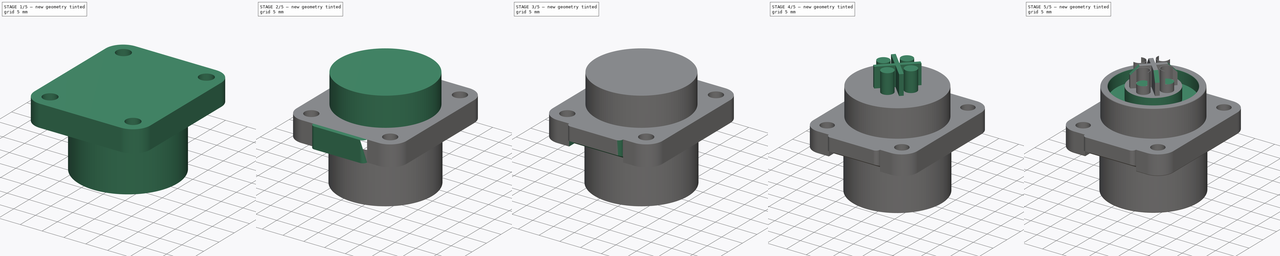
[diagram: build sequence overview — one tinted view per stage of 5, left to right]
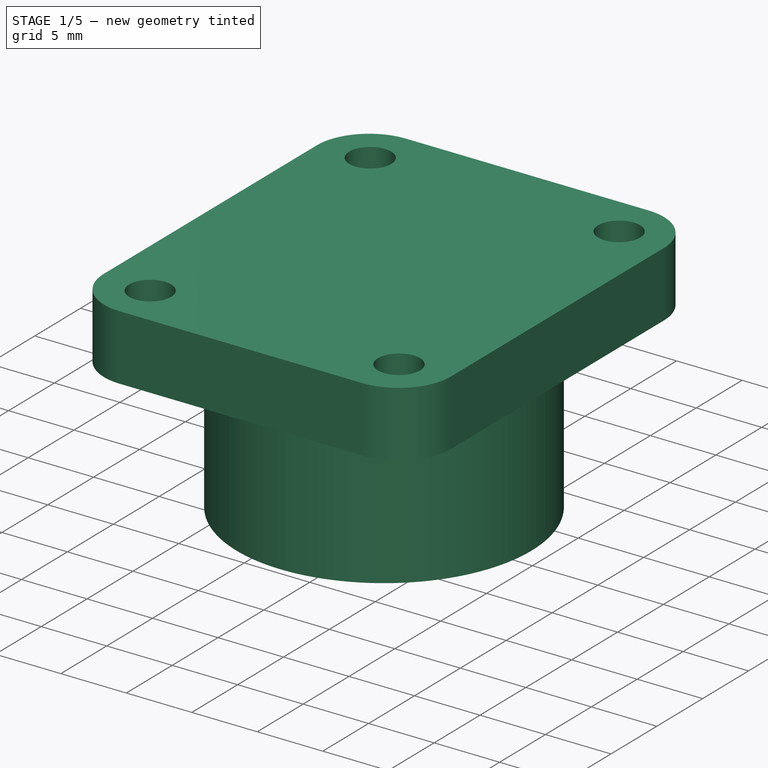
[diagram: stage 1 of 5 — iso view after this stage's code; geometry added in this stage tinted green]
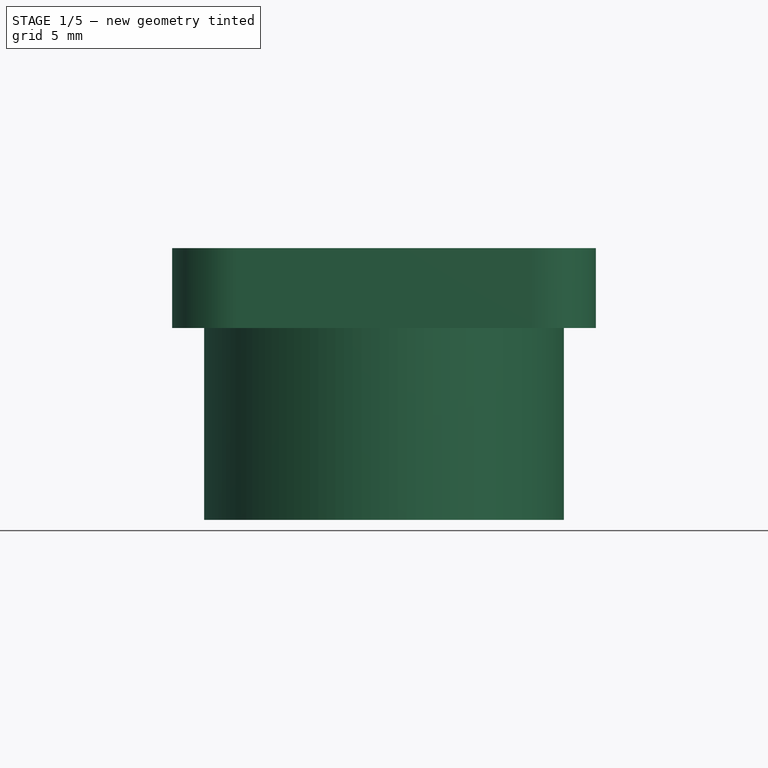
[diagram: stage 1 of 5 — front view after this stage's code; geometry added in this stage tinted green]
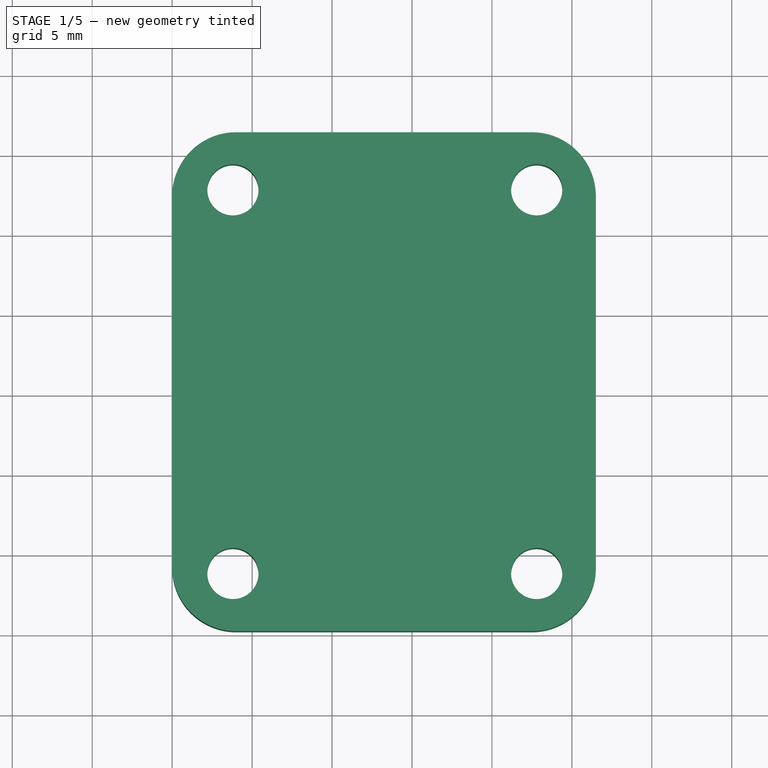
[diagram: stage 1 of 5 — top view after this stage's code; geometry added in this stage tinted green]
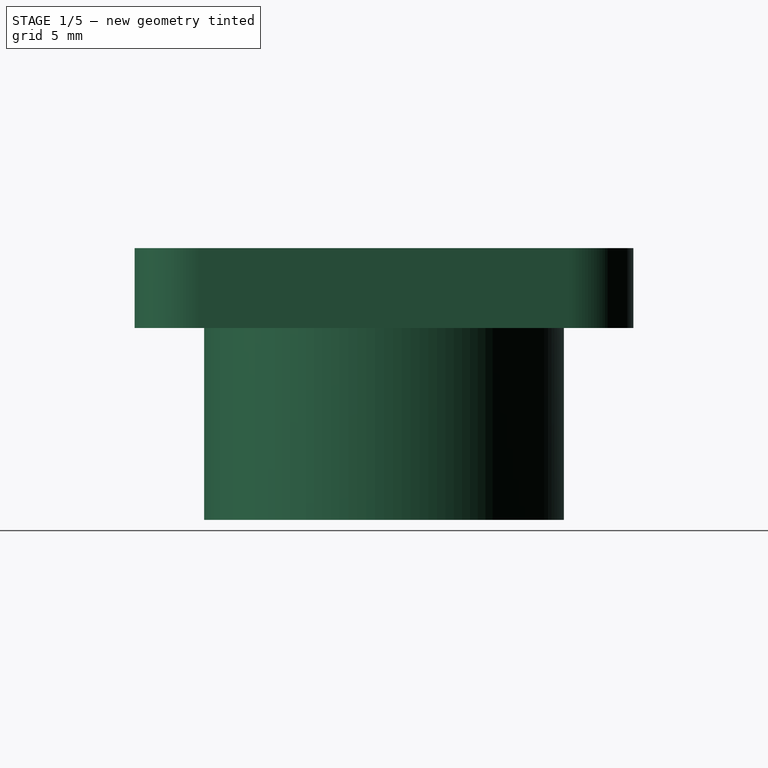
[diagram: stage 1 of 5 — right view after this stage's code; geometry added in this stage tinted green]
FCSTD DOCUMENT  (FreeCAD 0.18R4 (GitTag))
Label: PowerConnector
License: All rights reserved
LicenseURL: http://en.wikipedia.org/wiki/All_rights_reserved
objects: Sketcher::SketchObject×12, PartDesign::Pocket×7, PartDesign::Pad×5, PartDesign::Chamfer×4, PartDesign::Fillet×2, PartDesign::Body×1
note: 43 computed .brp shape members not serialized (recipe doc carries the construction recipe); baked Part::Feature solids carry a one-line shape summary decoded from their .brp

FEATURE [Sketcher::SketchObject] Sketch
  MapMode = 5
  Support = -> [XY_Plane]
  sketch-geometry (4):
    g0: LineSegment StartX=0 StartY=0 StartZ=0 EndX=26.5 EndY=0 EndZ=0
    g1: LineSegment StartX=26.5 StartY=0 StartZ=0 EndX=26.5 EndY=31.2 EndZ=0
    g2: LineSegment StartX=26.5 StartY=31.2 StartZ=0 EndX=0 EndY=31.2 EndZ=0
    g3: LineSegment StartX=0 StartY=31.2 StartZ=0 EndX=0 EndY=0 EndZ=0
  constraints (11):
    c: Coincident(g0,g1)
    c: Coincident(g1,g2)
    c: Coincident(g2,g3)
    c: Coincident(g3,g0)
    c: Horizontal(g0)
    c: Horizontal(g2)
    c: Vertical(g1)
    c: Vertical(g3)
    c: Coincident(g0,g-1)
    c: Distance(g2) = 26.5
    c: Distance(g3) = 31.2
FEATURE [PartDesign::Pad] Pad
  Length = 5
  Length2 = 100
  Profile = -> Sketch
  Type = 0
FEATURE [Sketcher::SketchObject] Sketch001
  MapMode = 5
  Placement = pos=(0,0,5) rot=(0,0,1;0rad)
  Support = -> [Pad]
  sketch-geometry (4):
    g0: Circle CenterX=3.8 CenterY=27.6 CenterZ=0 NormalX=0 NormalY=0 NormalZ=1 AngleXU=0 Radius=1.6
    g1: Circle CenterX=22.8 CenterY=27.6 CenterZ=0 NormalX=0 NormalY=0 NormalZ=1 AngleXU=0 Radius=1.6
    g2: Circle CenterX=22.8 CenterY=3.6 CenterZ=0 NormalX=0 NormalY=0 NormalZ=1 AngleXU=0 Radius=1.6
    g3: Circle CenterX=3.8 CenterY=3.6 CenterZ=0 NormalX=0 NormalY=0 NormalZ=1 AngleXU=0 Radius=1.6
  constraints (12):
    c: Diameter(g1) = 3.2
    c: Diameter(g2) = 3.2
    c: Diameter(g3) = 3.2
    c: Diameter(g0) = 3.2
    c: Distance(g0,g1) = 19
    c: Distance(g3,g2) = 19
    c: Distance(g3,g0) = 24
    c: Distance(g2,g1) = 24
    c: Distance(g0,g-2) = 3.8
    c: Distance(g3,g-2) = 3.8
    c: Distance(g3,g-1) = 3.6
    c: Distance(g2,g-1) = 3.6
FEATURE [PartDesign::Pocket] Pocket
  BaseFeature = -> Pad
  Length = 5
  Length2 = 100
  Profile = -> Sketch001
  Type = 0
FEATURE [PartDesign::Fillet] Fillet
  Base = -> Pocket [Edge8,Edge2,Edge5,Edge1]
  BaseFeature = -> Pocket
  Radius = 4
FEATURE [Sketcher::SketchObject] Sketch002
  MapMode = 5
  Placement = pos=(0,0,0) rot=(1,0,0;3.14159rad)
  Support = -> [Fillet]
  sketch-geometry (1):
    g0: Circle CenterX=13.25 CenterY=-15.6 CenterZ=0 NormalX=0 NormalY=0 NormalZ=1 AngleXU=0 Radius=11.25
  constraints (3):
    c: Distance(g0,g-1) = 15.6
    c: Distance(g0,g-2) = 13.25
    c: Diameter(g0) = 22.5
FEATURE [PartDesign::Pad] Pad001
  BaseFeature = -> Fillet
  Length = 12
  Length2 = 100
  Profile = -> Sketch002
  Type = 0
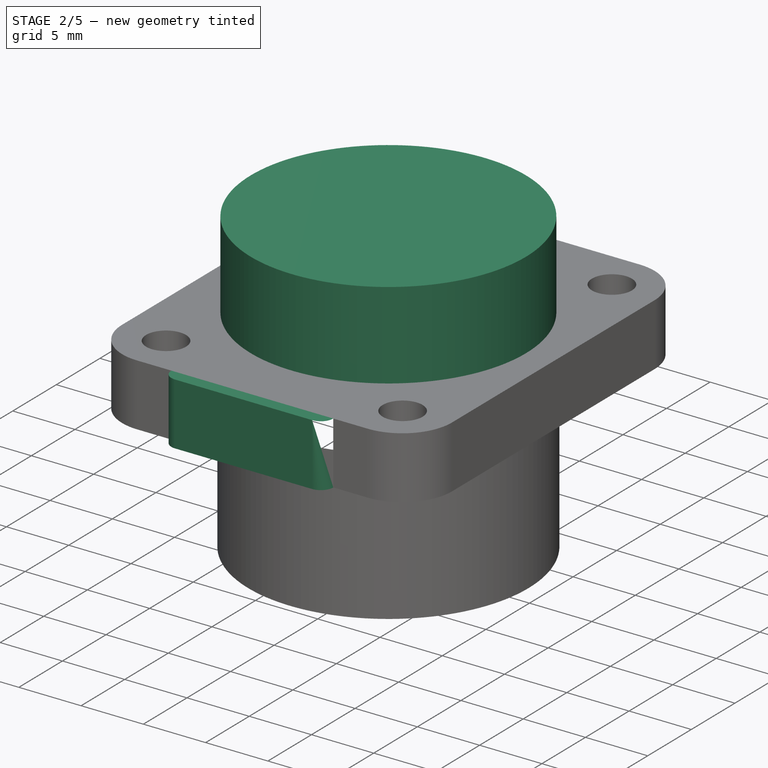
[diagram: stage 2 of 5 — iso view after this stage's code; geometry added in this stage tinted green]
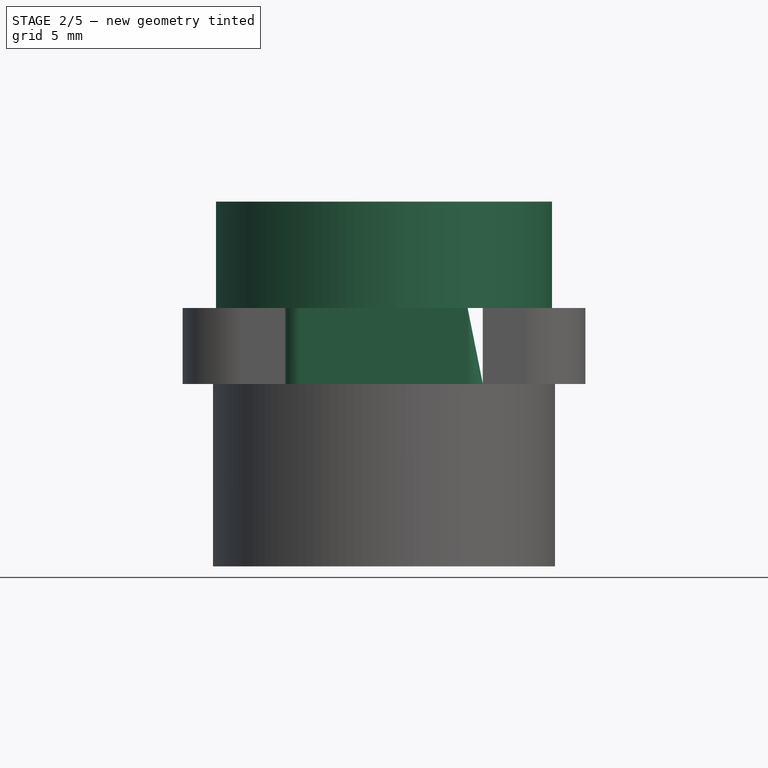
[diagram: stage 2 of 5 — front view after this stage's code; geometry added in this stage tinted green]
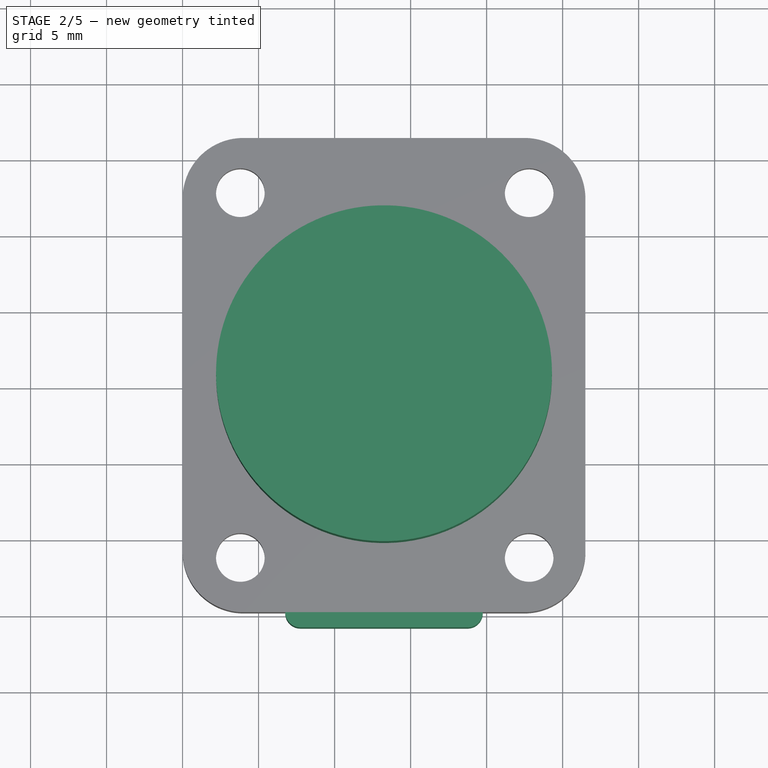
[diagram: stage 2 of 5 — top view after this stage's code; geometry added in this stage tinted green]
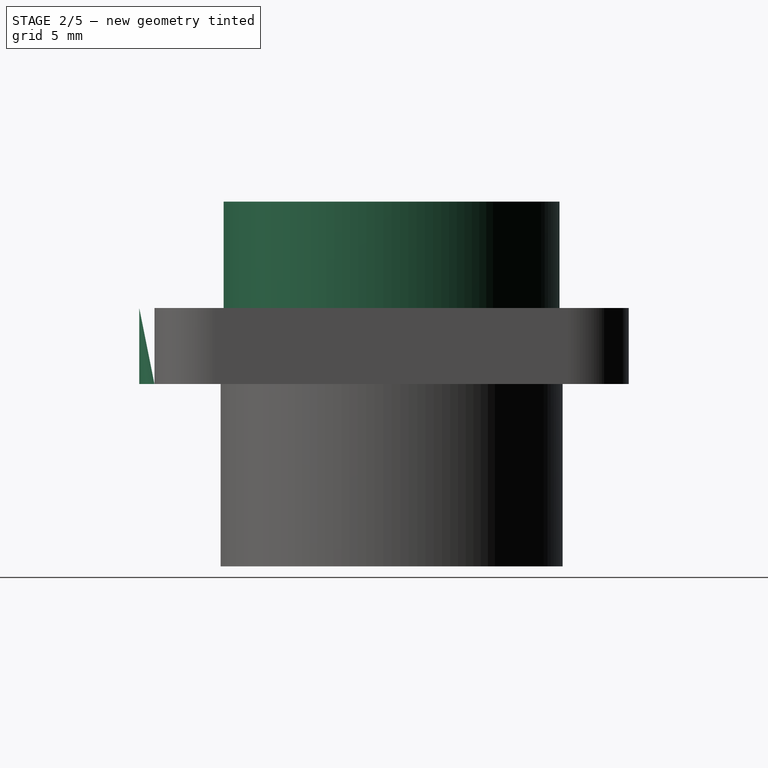
[diagram: stage 2 of 5 — right view after this stage's code; geometry added in this stage tinted green]
FEATURE [Sketcher::SketchObject] Sketch003
  MapMode = 5
  Placement = pos=(0,0,5) rot=(0,0,1;0rad)
  Support = -> [Pad001]
  sketch-geometry (1):
    g0: Circle CenterX=13.25 CenterY=15.6 CenterZ=0 NormalX=0 NormalY=0 NormalZ=1 AngleXU=0 Radius=11.05
  constraints (3):
    c: Distance(g0,g-1) = 15.6
    c: Distance(g0,g-2) = 13.25
    c: Diameter(g0) = 22.1
FEATURE [PartDesign::Pad] Pad002
  BaseFeature = -> Pad001
  Length = 7
  Length2 = 100
  Profile = -> Sketch003
  Type = 0
FEATURE [PartDesign::Chamfer] Chamfer
  Base = -> Pad002 [Edge14,Edge12,Edge16,Edge15]
  BaseFeature = -> Pad002
  Size = 1
FEATURE [Sketcher::SketchObject] Sketch004
  MapMode = 5
  Placement = pos=(0,0,0) rot=(1,0,0;3.14159rad)
  Support = -> [Chamfer]
  sketch-geometry (4):
    g0: ArcOfCircle CenterX=7.75 CenterY=1.7e-15 CenterZ=0 NormalX=0 NormalY=0 NormalZ=1 AngleXU=0 Radius=1 StartAngle=1.5708 EndAngle=4.71239
    g1: ArcOfCircle CenterX=18.75 CenterY=0 CenterZ=0 NormalX=0 NormalY=0 NormalZ=1 AngleXU=0 Radius=1 StartAngle=4.71239 EndAngle=7.85398
    g2: LineSegment StartX=7.75 StartY=-1 StartZ=0 EndX=18.75 EndY=-1 EndZ=0
    g3: LineSegment StartX=7.75 StartY=1 StartZ=0 EndX=18.75 EndY=1 EndZ=0
  constraints (10):
    c: Tangent(g0,g3) = 1.5708
    c: Tangent(g0,g2) = -1.5708
    c: Tangent(g2,g1) = -1.5708
    c: Tangent(g3,g1) = 1.5708
    c: Horizontal(g2)
    c: Equal(g0,g1)
    c: Distance(g3) = 11
    c: Distance(g1,g1) = 1
    c: Distance(g0,g-1) = 1
    c: Distance(g0,g-2) = 7.75
FEATURE [PartDesign::Pad] Pad003
  BaseFeature = -> Chamfer
  Length = 5
  Length2 = 100
  Profile = -> Sketch004
  Reversed = true
  Type = 0
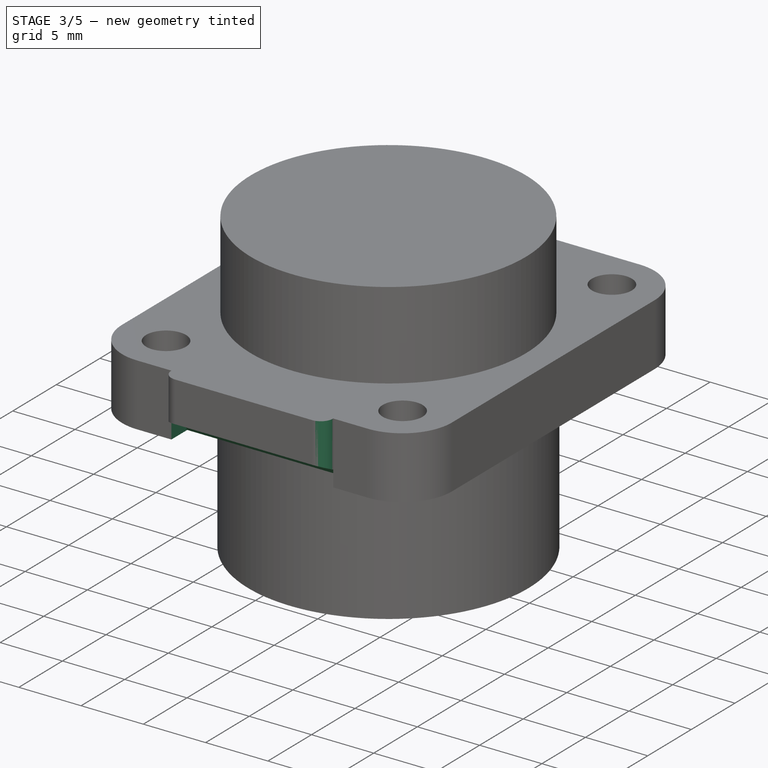
[diagram: stage 3 of 5 — iso view after this stage's code; geometry added in this stage tinted green]
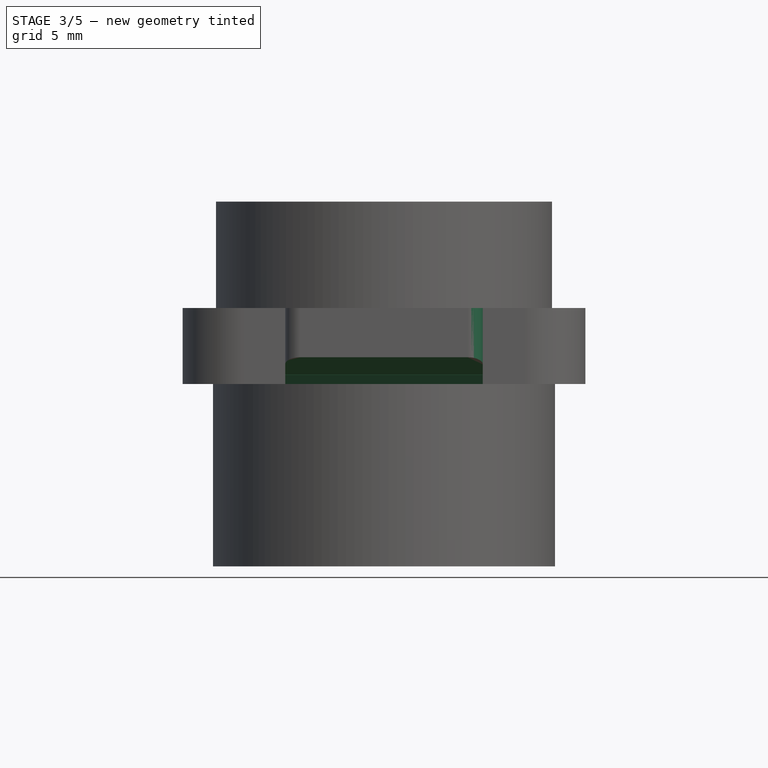
[diagram: stage 3 of 5 — front view after this stage's code; geometry added in this stage tinted green]
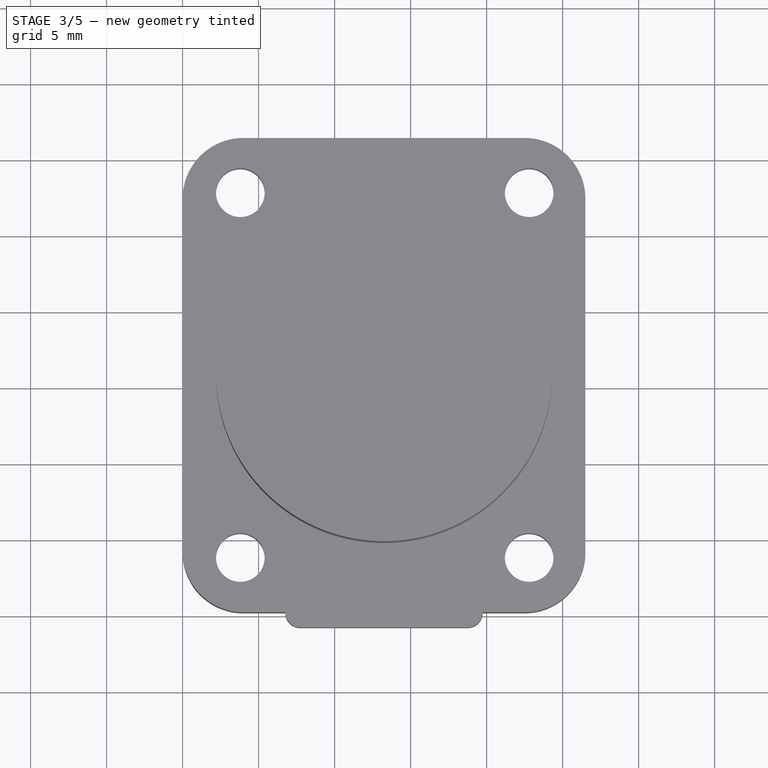
[diagram: stage 3 of 5 — top view after this stage's code; geometry added in this stage tinted green]
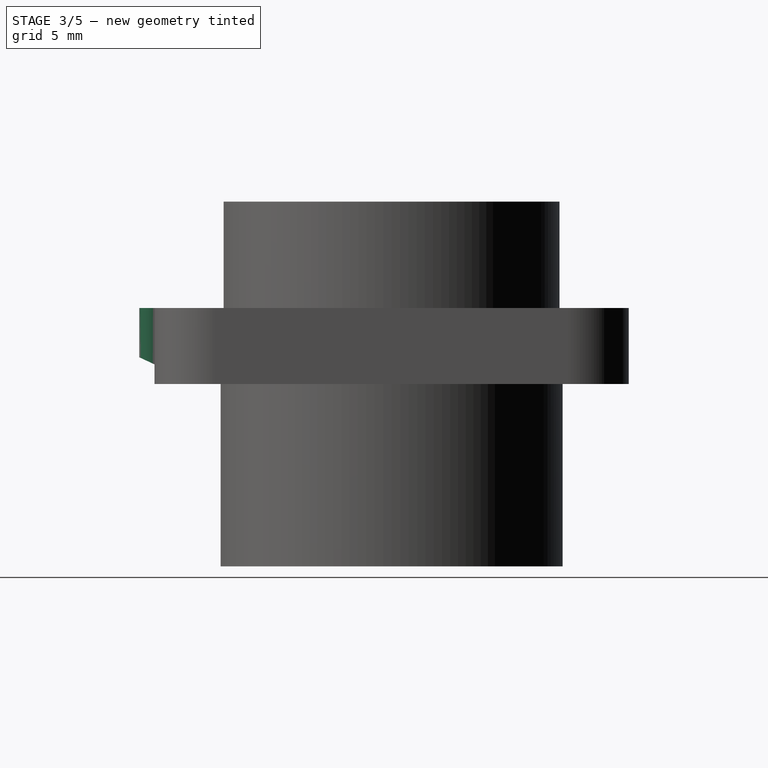
[diagram: stage 3 of 5 — right view after this stage's code; geometry added in this stage tinted green]
FEATURE [Sketcher::SketchObject] Sketch005
  AttachmentOffset = pos=(0,0,-1) rot=(-1,0,0;0.436332rad)
  ExternalGeometry = -> [Pad003]
  MapMode = 5
  Placement = pos=(0,-1,-1) rot=(1,0,0;2.70526rad)
  Support = -> [Pad003]
  sketch-geometry (4):
    g0: LineSegment StartX=6.75 StartY=2.48369 StartZ=0 EndX=19.75 EndY=2.48369 EndZ=0
    g1: LineSegment StartX=19.75 StartY=2.48369 StartZ=0 EndX=19.75 EndY=-1.51631 EndZ=0
    g2: LineSegment StartX=19.75 StartY=-1.51631 StartZ=0 EndX=6.75 EndY=-1.51631 EndZ=0
    g3: LineSegment StartX=6.75 StartY=-1.51631 StartZ=0 EndX=6.75 EndY=2.48369 EndZ=0
  constraints (12):
    c: Coincident(g0,g1)
    c: Coincident(g1,g2)
    c: Coincident(g2,g3)
    c: Coincident(g3,g0)
    c: Horizontal(g0)
    c: Horizontal(g2)
    c: Vertical(g1)
    c: Vertical(g3)
    c: Distance(g0) = 13
    c: Distance(g1) = 4
    c: Distance(g-3,g3) = 1
    c: Distance(g-3,g0) = 2
FEATURE [PartDesign::Pocket] Pocket001
  BaseFeature = -> Pad003
  Length = 2.5
  Length2 = 100
  Profile = -> Sketch005
  Type = 0
FEATURE [PartDesign::Chamfer] Chamfer001
  Base = -> Pocket001 [Edge10]
  BaseFeature = -> Pocket001
  Size = 0.68
FEATURE [Sketcher::SketchObject] Sketch006
  ExternalGeometry = -> [Chamfer001]
  MapMode = 5
  Placement = pos=(0,0,-12) rot=(1,0,0;3.14159rad)
  Support = -> [Chamfer001]
  sketch-geometry (1):
    g0: Circle CenterX=13.25 CenterY=-15.6 CenterZ=0 NormalX=0 NormalY=0 NormalZ=1 AngleXU=0 Radius=10.25
  constraints (3):
    c: Coincident(g0,g-3)
    c: Diameter(g-3) = 22.5
    c: Diameter(g0) = 20.5
FEATURE [PartDesign::Pocket] Pocket002
  BaseFeature = -> Chamfer001
  Length = 1
  Length2 = 100
  Profile = -> Sketch006
  Type = 0
FEATURE [Sketcher::SketchObject] Sketch007
  ExternalGeometry = -> [Pocket002]
  MapMode = 5
  Placement = pos=(0,0,-11) rot=(1,0,0;3.14159rad)
  Support = -> [Pocket002]
  sketch-geometry (2):
    g0: Circle CenterX=13.25 CenterY=-15.6 CenterZ=0 NormalX=0 NormalY=0 NormalZ=1 AngleXU=0 Radius=10.25
    g1: Circle CenterX=13.25 CenterY=-15.6 CenterZ=0 NormalX=0 NormalY=0 NormalZ=1 AngleXU=0 Radius=7.5
  constraints (4):
    c: Coincident(g-3,g0)
    c: Diameter(g0) = 20.5
    c: Coincident(g1,g0)
    c: Diameter(g1) = 15
FEATURE [PartDesign::Pocket] Pocket003
  BaseFeature = -> Pocket002
  Length = 9
  Length2 = 100
  Profile = -> Sketch007
  Type = 0
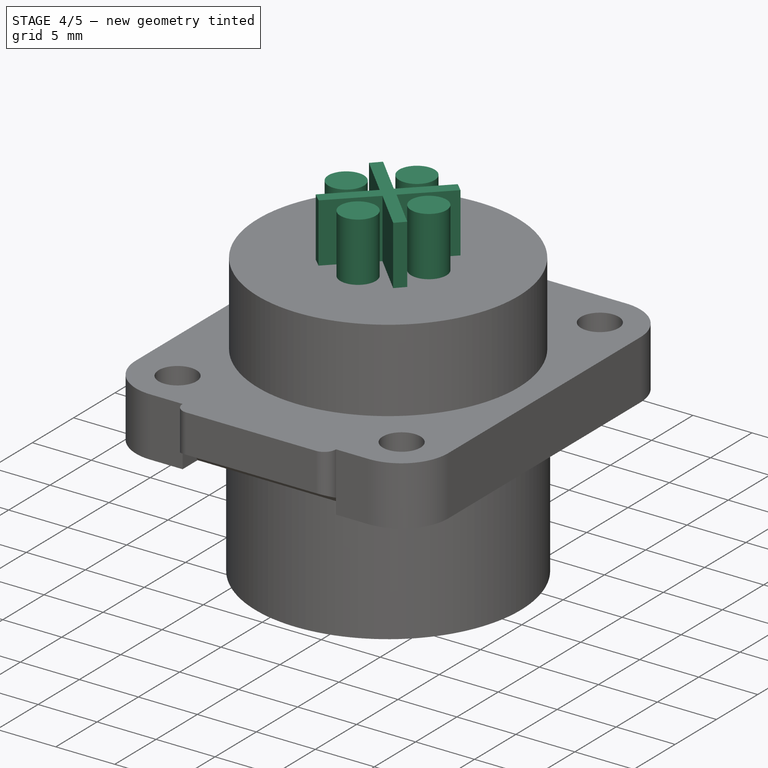
[diagram: stage 4 of 5 — iso view after this stage's code; geometry added in this stage tinted green]
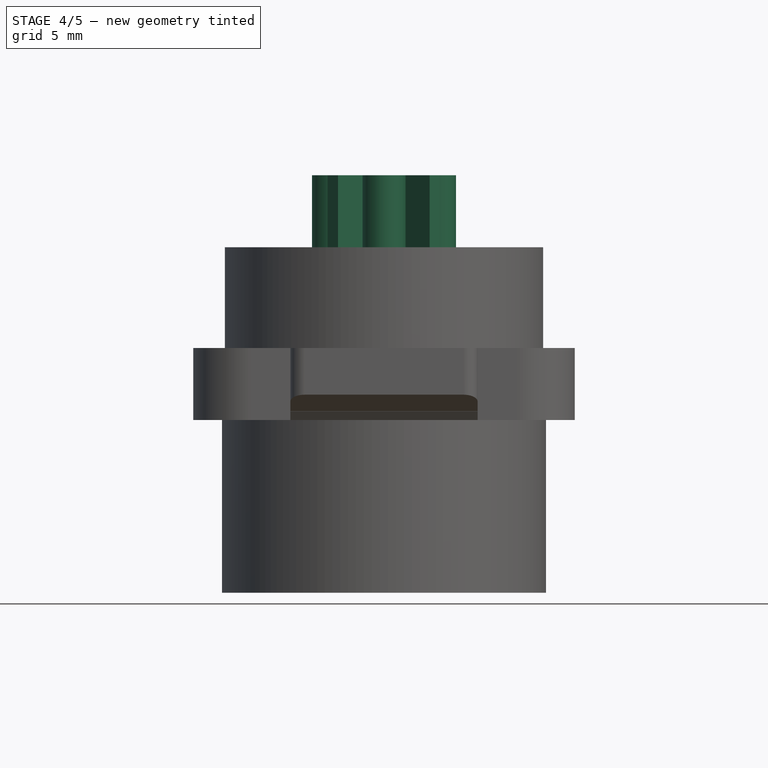
[diagram: stage 4 of 5 — front view after this stage's code; geometry added in this stage tinted green]
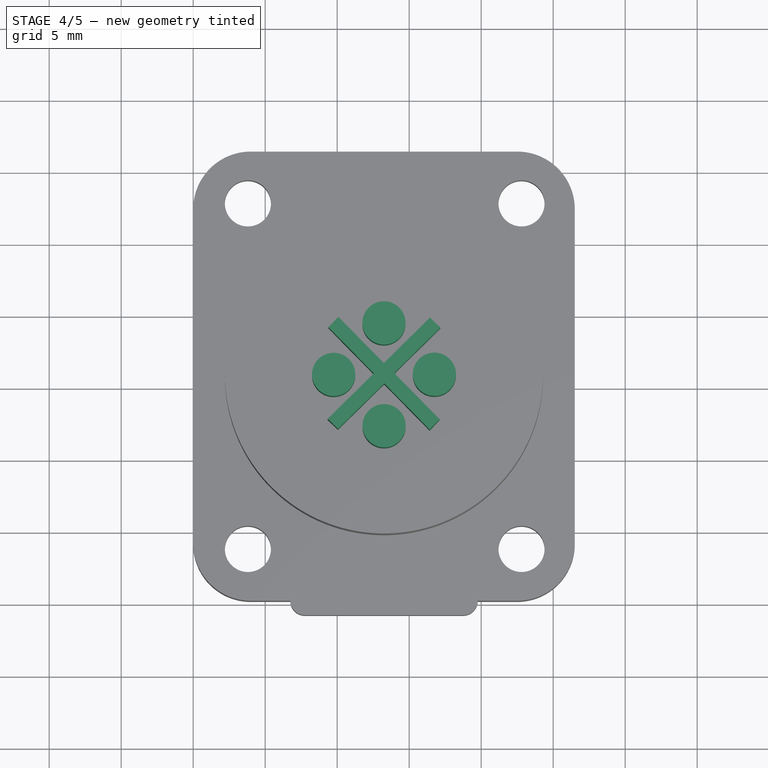
[diagram: stage 4 of 5 — top view after this stage's code; geometry added in this stage tinted green]
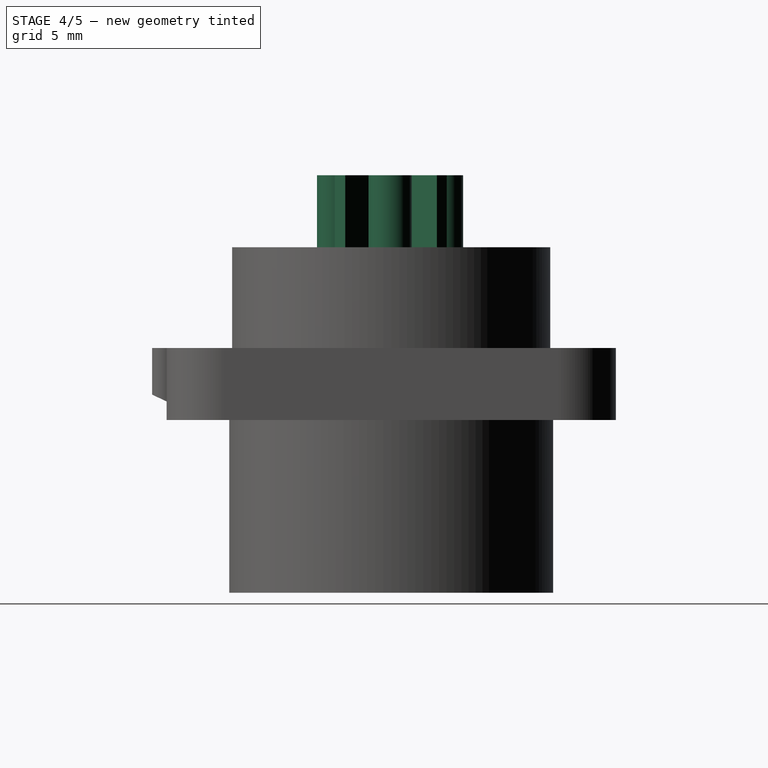
[diagram: stage 4 of 5 — right view after this stage's code; geometry added in this stage tinted green]
FEATURE [Sketcher::SketchObject] Sketch008
  ExternalGeometry = -> [Pocket003]
  MapMode = 5
  Placement = pos=(0,0,-11) rot=(1,0,0;3.14159rad)
  Support = -> [Pocket003]
  sketch-geometry (4):
    g0: Circle CenterX=13.25 CenterY=-11.9571 CenterZ=0 NormalX=0 NormalY=0 NormalZ=1 AngleXU=0 Radius=1.5
    g1: Circle CenterX=16.7493 CenterY=-15.5286 CenterZ=0 NormalX=0 NormalY=0 NormalZ=1 AngleXU=0 Radius=1.5
    g2: Circle CenterX=9.75073 CenterY=-15.5286 CenterZ=0 NormalX=0 NormalY=0 NormalZ=1 AngleXU=0 Radius=1.5
    g3: Circle CenterX=13.25 CenterY=-19.1 CenterZ=0 NormalX=0 NormalY=0 NormalZ=1 AngleXU=0 Radius=1.5
  constraints (12):
    c: Diameter(g1) = 3
    c: Diameter(g0) = 3
    c: Diameter(g3) = 3
    c: Diameter(g2) = 3
    c: Distance(g0,g2) = 5
    c: Distance(g2,g3) = 5
    c: Distance(g1,g0) = 5
    c: Distance(g1,g3) = 5
    c: Distance(g1,g-3) = 3.5
    c: Distance(g2,g-3) = 3.5
    c: Distance(g3,g-3) = 3.5
    c: Distance(g0,g-2) = 13.25
FEATURE [PartDesign::Pocket] Pocket004
  BaseFeature = -> Pocket003
  Length = 7
  Length2 = 100
  Profile = -> Sketch008
  Type = 0
FEATURE [PartDesign::Chamfer] Chamfer002
  Base = -> Pocket004 [Edge90,Edge92,Edge91,Edge93]
  BaseFeature = -> Pocket004
  Size = 0.5
FEATURE [Sketcher::SketchObject] Sketch009
  ExternalGeometry = -> [Chamfer002]
  MapMode = 5
  Placement = pos=(0,0,12) rot=(0,0,1;0rad)
  Support = -> [Chamfer002]
  sketch-geometry (16):
    g0: Circle CenterX=9.751 CenterY=15.5165 CenterZ=0 NormalX=0 NormalY=0 NormalZ=1 AngleXU=0 Radius=1.5
    g1: Circle CenterX=13.245 CenterY=19.0931 CenterZ=0 NormalX=0 NormalY=0 NormalZ=1 AngleXU=0 Radius=1.5
    g2: Circle CenterX=16.7492 CenterY=15.5266 CenterZ=0 NormalX=0 NormalY=0 NormalZ=1 AngleXU=0 Radius=1.5
    g3: Circle CenterX=13.2553 CenterY=11.95 CenterZ=0 NormalX=0 NormalY=0 NormalZ=1 AngleXU=0 Radius=1.5
    g4: LineSegment StartX=10.081 StartY=19.5157 StartZ=0 EndX=9.3883 EndY=18.7945 EndZ=0
    g5: LineSegment StartX=9.3883 StartY=18.7945 StartZ=0 EndX=12.5431 EndY=15.5856 EndZ=0
    g6: LineSegment StartX=12.5431 StartY=15.5856 StartZ=0 EndX=9.3343 EndY=12.4307 EndZ=0
    g7: LineSegment StartX=9.3343 StartY=12.4307 StartZ=0 EndX=10.0554 EndY=11.7378 EndZ=0
    g8: LineSegment StartX=10.0554 StartY=11.7378 StartZ=0 EndX=13.2642 EndY=14.8927 EndZ=0
    g9: LineSegment StartX=13.2642 StartY=14.8927 StartZ=0 EndX=16.419 EndY=11.6838 EndZ=0
    g10: LineSegment StartX=16.419 StartY=11.6838 StartZ=0 EndX=17.1116 EndY=12.405 EndZ=0
    g11: LineSegment StartX=17.1116 StartY=12.405 StartZ=0 EndX=13.9569 EndY=15.614 EndZ=0
    g12: LineSegment StartX=13.9569 StartY=15.614 StartZ=0 EndX=17.1658 EndY=18.7688 EndZ=0
    g13: LineSegment StartX=17.1658 StartY=18.7688 StartZ=0 EndX=16.4447 EndY=19.4617 EndZ=0
    g14: LineSegment StartX=16.4447 StartY=19.4617 StartZ=0 EndX=13.2358 EndY=16.3069 EndZ=0
    g15: LineSegment StartX=13.2358 StartY=16.3069 StartZ=0 EndX=10.081 EndY=19.5157 EndZ=0
  constraints (45):
    c: Diameter(g2) = 3
    c: Diameter(g1) = 3
    c: Diameter(g3) = 3
    c: Diameter(g0) = 3
    c: Coincident(g4,g5)
    c: Coincident(g5,g6)
    c: Coincident(g6,g7)
    c: Coincident(g7,g8)
    c: Coincident(g8,g9)
    c: Coincident(g9,g10)
    c: Coincident(g10,g11)
    c: Coincident(g11,g12)
    c: Coincident(g12,g13)
    c: Coincident(g13,g14)
    c: Coincident(g14,g15)
    c: Coincident(g15,g4)
    c: Distance(g4) = 1
    c: Distance(g13) = 1
    c: Distance(g10) = 1
    c: Distance(g7) = 1
    c: Distance(g8,g11) = 1
    c: Distance(g11,g14) = 1
    c: Distance(g14,g5) = 1
    c: Distance(g5,g8) = 1
    c: Distance(g6) = 4.5
    c: Distance(g8) = 4.5
    c: Distance(g14) = 4.5
    c: Distance(g12) = 4.5
    c: Distance(g11) = 4.5
    c: Distance(g9) = 4.5
    c: Distance(g5) = 4.5
    c: Distance(g15) = 4.5
    c: Distance(g1,g2) = 5
    c: Distance(g2,g3) = 5
    c: Distance(g3,g0) = 5
    c: Distance(g0,g1) = 5
    c: Distance(g0,g-3) = 3.5
    c: Distance(g-3,g2) = 3.5
    c: Distance(g3,g-3) = 3.65
    c: Distance(g5,g-3) = 0.707
    c: Distance(g-3,g11) = 0.707
    c: Distance(g-3,g14) = 0.707
    c: Distance(g12,g10) = 6.364
    c: Distance(g13,g4) = 6.364
    c: Distance(g4,g6) = 6.364
FEATURE [PartDesign::Pad] Pad004
  BaseFeature = -> Chamfer002
  Length = 5
  Length2 = 100
  Profile = -> Sketch009
  Type = 0
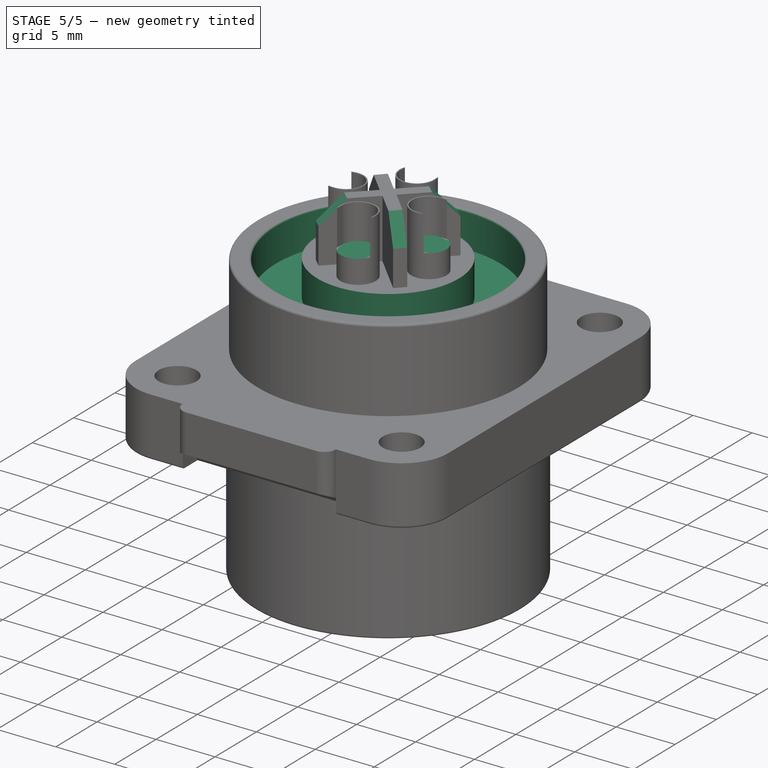
[diagram: stage 5 of 5 — iso view after this stage's code; geometry added in this stage tinted green]
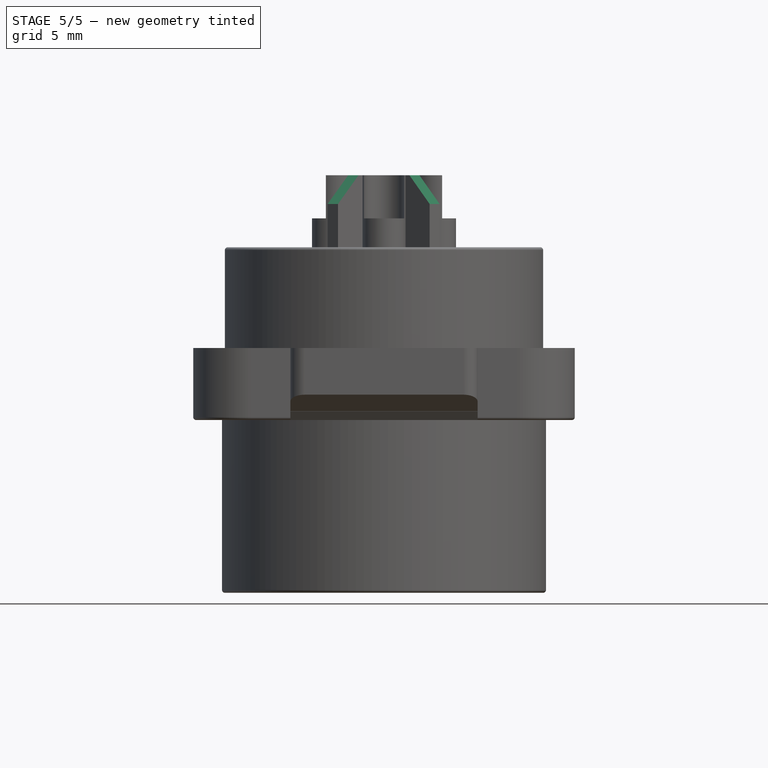
[diagram: stage 5 of 5 — front view after this stage's code; geometry added in this stage tinted green]
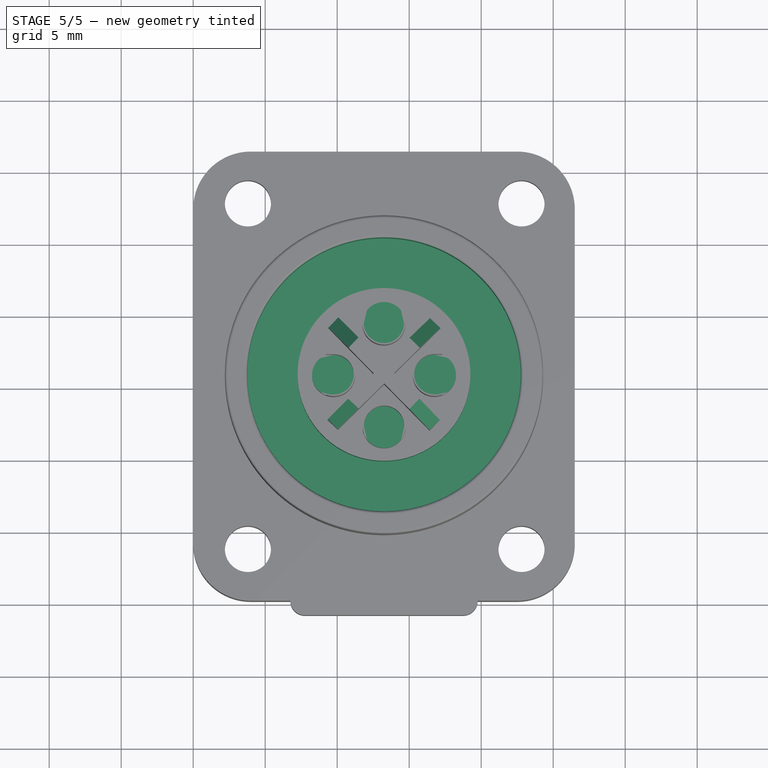
[diagram: stage 5 of 5 — top view after this stage's code; geometry added in this stage tinted green]
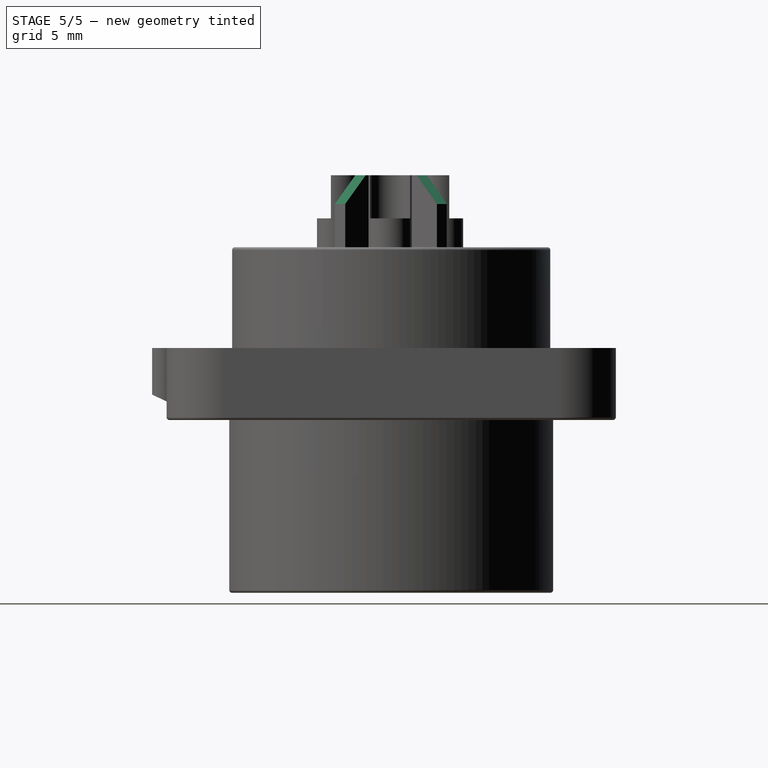
[diagram: stage 5 of 5 — right view after this stage's code; geometry added in this stage tinted green]
FEATURE [PartDesign::Chamfer] Chamfer003
  Base = -> Pad004 [Edge136,Edge154,Edge148,Edge142]
  BaseFeature = -> Pad004
  Size = 2
FEATURE [Sketcher::SketchObject] Sketch010
  ExternalGeometry = -> [Chamfer003]
  MapMode = 5
  Placement = pos=(0,0,17) rot=(0,0,1;0rad)
  Support = -> [Chamfer003]
  sketch-geometry (16):
    g0: ArcOfCircle CenterX=13.245 CenterY=19.0931 CenterZ=0 NormalX=0 NormalY=0 NormalZ=1 AngleXU=0 Radius=1.4 StartAngle=3.14159 EndAngle=6.28319
    g1: ArcOfCircle CenterX=13.245 CenterY=21.0931 CenterZ=0 NormalX=0 NormalY=0 NormalZ=1 AngleXU=0 Radius=1.4 StartAngle=4.7819e-12 EndAngle=3.14159
    g2: LineSegment StartX=14.645 StartY=19.0931 StartZ=0 EndX=14.645 EndY=21.0931 EndZ=0
    g3: LineSegment StartX=11.845 StartY=19.0931 StartZ=0 EndX=11.845 EndY=21.0931 EndZ=0
    g4: ArcOfCircle CenterX=16.7492 CenterY=15.5266 CenterZ=0 NormalX=0 NormalY=0 NormalZ=1 AngleXU=0 Radius=1.4 StartAngle=1.5708 EndAngle=4.71239
    g5: ArcOfCircle CenterX=18.7492 CenterY=15.5266 CenterZ=0 NormalX=0 NormalY=0 NormalZ=1 AngleXU=0 Radius=1.4 StartAngle=4.71239 EndAngle=7.85398
    g6: LineSegment StartX=16.7492 StartY=14.1266 StartZ=0 EndX=18.7492 EndY=14.1266 EndZ=0
    g7: LineSegment StartX=16.7492 StartY=16.9266 StartZ=0 EndX=18.7492 EndY=16.9266 EndZ=0
    g8: ArcOfCircle CenterX=13.2553 CenterY=11.95 CenterZ=0 NormalX=0 NormalY=0 NormalZ=1 AngleXU=0 Radius=1.4 StartAngle=6e-16 EndAngle=3.14159
    g9: ArcOfCircle CenterX=13.2553 CenterY=9.95 CenterZ=0 NormalX=0 NormalY=0 NormalZ=1 AngleXU=0 Radius=1.4 StartAngle=3.14159 EndAngle=6.28319
    g10: LineSegment StartX=11.8553 StartY=11.95 StartZ=0 EndX=11.8553 EndY=9.95 EndZ=0
    g11: LineSegment StartX=14.6553 StartY=11.95 StartZ=0 EndX=14.6553 EndY=9.95 EndZ=0
    g12: ArcOfCircle CenterX=7.751 CenterY=15.5165 CenterZ=0 NormalX=0 NormalY=0 NormalZ=1 AngleXU=0 Radius=1.4 StartAngle=1.5708 EndAngle=4.71239
    g13: ArcOfCircle CenterX=9.751 CenterY=15.5165 CenterZ=0 NormalX=0 NormalY=0 NormalZ=1 AngleXU=0 Radius=1.4 StartAngle=4.71239 EndAngle=7.85398
    g14: LineSegment StartX=7.751 StartY=14.1165 StartZ=0 EndX=9.751 EndY=14.1165 EndZ=0
    g15: LineSegment StartX=7.751 StartY=16.9165 StartZ=0 EndX=9.751 EndY=16.9165 EndZ=0
  constraints (37):
    c: Tangent(g0,g3) = 1.5708
    c: Tangent(g0,g2) = -1.5708
    c: Tangent(g2,g1) = -1.5708
    c: Tangent(g3,g1) = 1.5708
    c: Vertical(g2)
    c: Equal(g0,g1)
    c: Tangent(g4,g7) = 1.5708
    c: Tangent(g4,g6) = -1.5708
    c: Tangent(g6,g5) = -1.5708
    c: Tangent(g7,g5) = 1.5708
    c: Horizontal(g6)
    c: Equal(g4,g5)
    c: Tangent(g8,g11) = 1.5708
    c: Tangent(g8,g10) = -1.5708
    c: Tangent(g10,g9) = -1.5708
    c: Tangent(g11,g9) = 1.5708
    c: Vertical(g10)
    c: Equal(g8,g9)
    c: Tangent(g12,g15) = 1.5708
    c: Tangent(g12,g14) = -1.5708
    c: Tangent(g14,g13) = -1.5708
    c: Tangent(g15,g13) = 1.5708
    c: Horizontal(g14)
    c: Equal(g12,g13)
    c: Coincident(g0,g-3)
    c: Coincident(g13,g-6)
    c: Coincident(g4,g-4)
    c: Coincident(g8,g-5)
    c: Diameter(g-4) = 3
    c: Diameter(g4) = 2.8
    c: Diameter(g0) = 2.8
    c: Diameter(g13) = 2.8
    c: Diameter(g8) = 2.8
    c: Distance(g0,g1) = 2
    c: Distance(g4,g5) = 2
    c: Distance(g9,g8) = 2
    c: Distance(g12,g13) = 2
FEATURE [PartDesign::Pocket] Pocket005
  BaseFeature = -> Chamfer003
  Length = 3
  Length2 = 100
  Profile = -> Sketch010
  Type = 0
FEATURE [Sketcher::SketchObject] Sketch011
  ExternalGeometry = -> [Pocket005]
  MapMode = 5
  Placement = pos=(0,0,12) rot=(0,0,1;0rad)
  Support = -> [Pocket005]
  sketch-geometry (2):
    g0: Circle CenterX=13.25 CenterY=15.6 CenterZ=0 NormalX=0 NormalY=0 NormalZ=1 AngleXU=0 Radius=6
    g1: Circle CenterX=13.25 CenterY=15.6 CenterZ=0 NormalX=0 NormalY=0 NormalZ=1 AngleXU=0 Radius=9.5
  constraints (5):
    c: Coincident(g0,g-3)
    c: Coincident(g1,g0)
    c: Diameter(g-3) = 22.1
    c: Diameter(g1) = 19
    c: Diameter(g0) = 12
FEATURE [PartDesign::Pocket] Pocket006
  BaseFeature = -> Pocket005
  Length = 3
  Length2 = 100
  Profile = -> Sketch011
  Refine = true
  Type = 0
FEATURE [PartDesign::Fillet] Fillet001
  Base = -> Pocket006 [Edge95,Edge26,Edge4,Edge31,Edge214,Edge213]
  BaseFeature = -> Pocket006
  Radius = 0.2
FEATURE [PartDesign::Body] Body  label="PowerConnector"
  Group = -> [Sketch,Pad,Sketch001,Pocket,Fillet,Sketch002,Pad001,Sketch003,Pad002,Chamfer,Sketch004,Pad003,Sketch005,Pocket001,Chamfer001,Sketch006,Pocket002,Sketch007,Pocket003,Sketch008,Pocket004,Chamfer002,Sketch009,Pad004,Chamfer003,Sketch010,Pocket005,Sketch011,Pocket006,Fillet001]
  Origin = -> Origin
  Tip = -> Fillet001
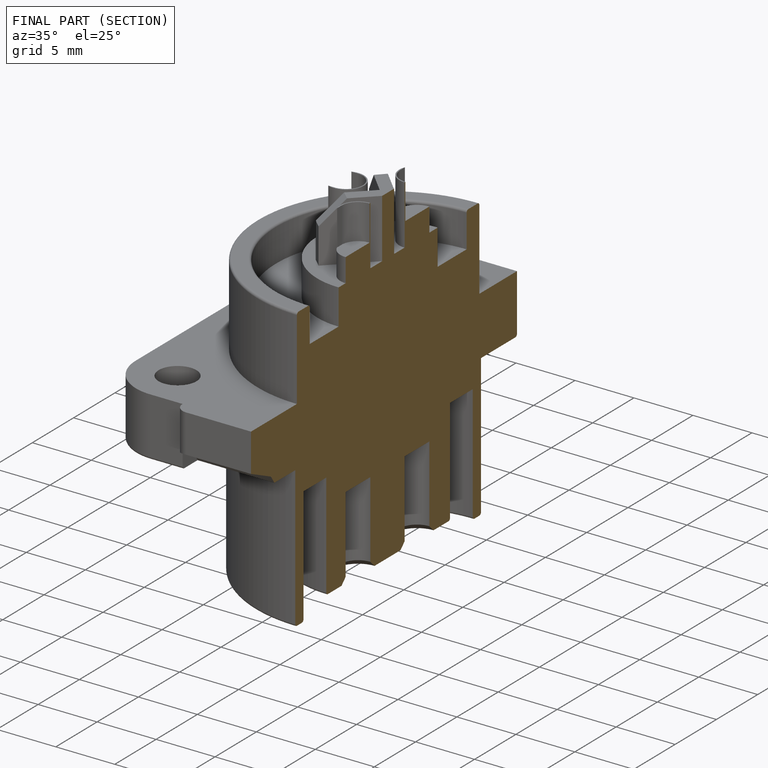
[diagram: finished part — half-section view (interior)]
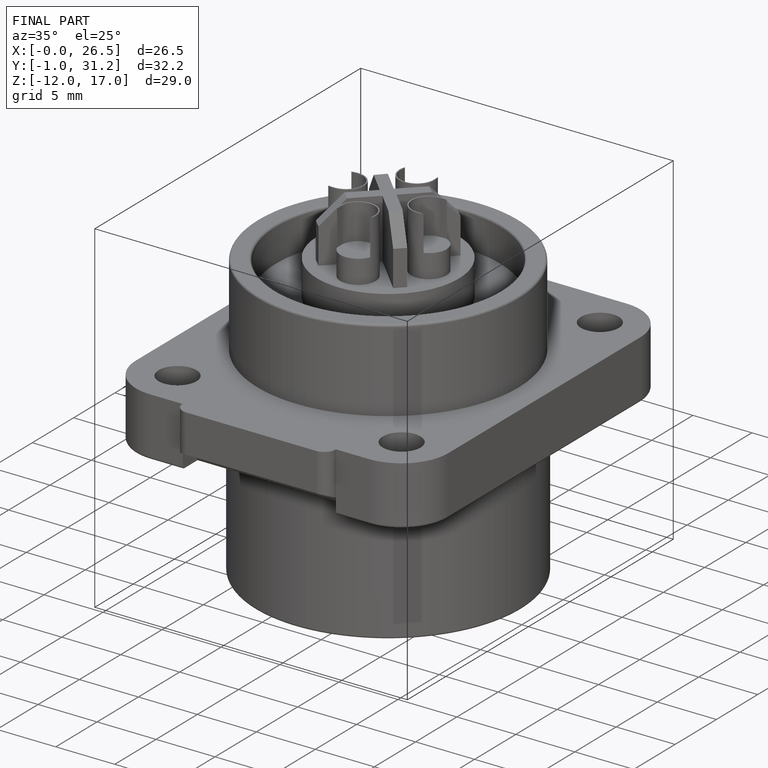
[diagram: finished part — iso view with bounding-box wireframe]
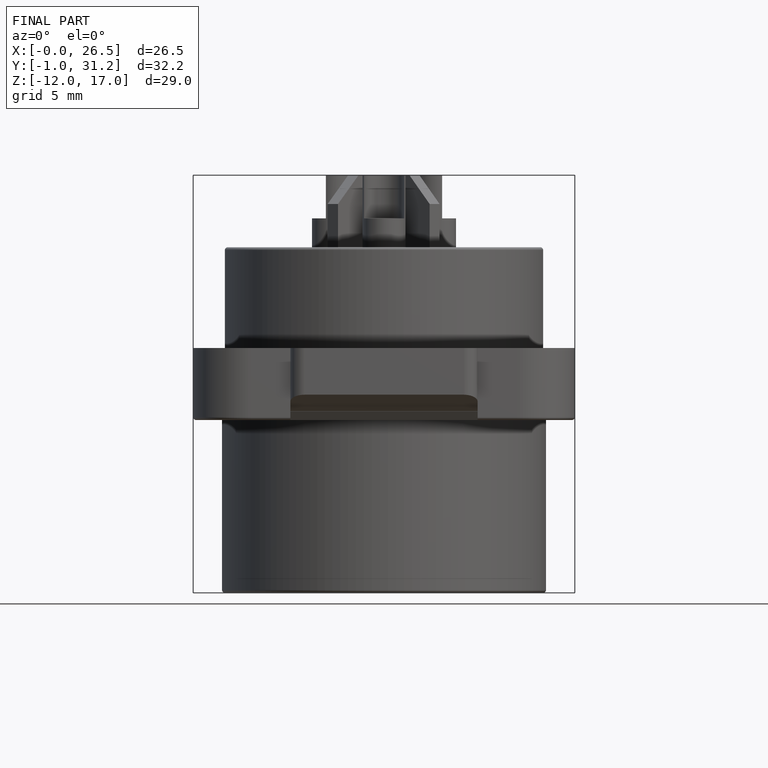
[diagram: finished part — front view with bounding-box wireframe]
